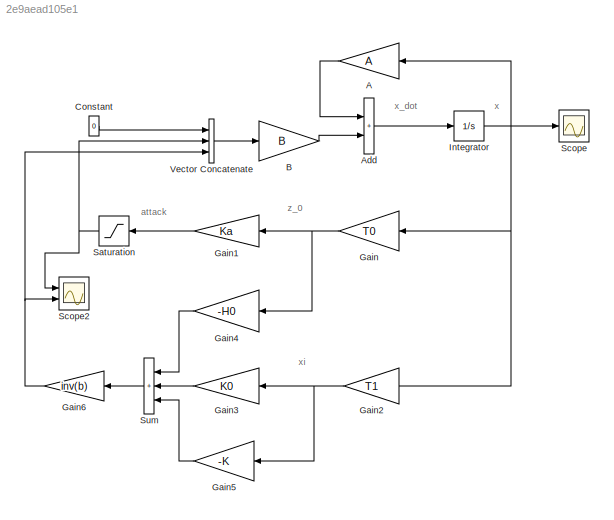
MODEL slx_2e9aead105e1
KIND model
CONFIG AbsTol = auto
CONFIG EnableMultiTasking = off
CONFIG FixedStep = auto
CONFIG MaxStep = auto
CONFIG MinStep = auto
CONFIG RelTol = 1e-3
CONFIG SampleTimeConstraint = Unconstrained
CONFIG SolverName = VariableStepAuto
CONFIG StartTime = 0.0
CONFIG StopTime = 6
BLOCK [Gain] A
  Gain = A
  Multiplication = Matrix(K*u) (u vector)
  NameLocation = top
BLOCK [Sum] Add
  IconShape = rectangular
  Ports = [2, 1]
BLOCK [Gain] B
  Gain = B
  Multiplication = Matrix(K*u) (u vector)
BLOCK [Constant] Constant
  Value = 0
BLOCK [Gain] Gain
  Gain = T0
  Multiplication = Matrix(K*u) (u vector)
  NameLocation = top
BLOCK [Gain] Gain1
  Gain = Ka
  Multiplication = Matrix(K*u) (u vector)
  NameLocation = top
BLOCK [Gain] Gain2
  Gain = T1
  Multiplication = Matrix(K*u) (u vector)
  NameLocation = top
BLOCK [Gain] Gain3
  Gain = K0
  Multiplication = Matrix(K*u) (u vector)
  NameLocation = top
BLOCK [Gain] Gain4
  Gain = -H0
  Multiplication = Matrix(K*u) (u vector)
  NameLocation = top
BLOCK [Gain] Gain5
  Gain = -K
  Multiplication = Matrix(K*u) (u vector)
  NameLocation = top
BLOCK [Gain] Gain6
  Gain = inv(b)
  Multiplication = Matrix(K*u) (u vector)
  NameLocation = top
BLOCK [Integrator] Integrator
  ContinuousStateAttributes = ['delta1' 'delta2' 'delta3' 'omega1' 'omega2' 'omega3']
  InitialCondition = [0 omega20 0 0 0 0]
  Ports = [1, 1]
BLOCK [Saturate] Saturation
  LowerLimit = -0.1
  NameLocation = top
  UpperLimit = 0.1
BLOCK [Scope] Scope
  Floating = off
  NumInputPorts = 1
  Ports = [1]
  ScopeSpecificationString = Simulink.scopes.TimeScopeBlockCfg('CurrentConfiguration', extmgr.ConfigurationSet(extmgr.Configuration('Core','General UI',true),extmgr.Configuration('Core','Source UI',true),extmgr.Configuration('Sources','WiredSimulink',true),extmgr.Configuration('Visuals','Time Domain',true,'SerializedDisplays',{struct('MinYLimReal','-0.56989','MaxYLimReal','0.07777','YLabelReal','','MinYLimMag','0.00000','MaxY...<+1664ch>
BLOCK [Scope] Scope2
  Floating = off
  NumInputPorts = 2
  Ports = [2]
  ScopeSpecificationString = Simulink.scopes.TimeScopeBlockCfg('CurrentConfiguration', extmgr.ConfigurationSet(extmgr.Configuration('Core','General UI',true),extmgr.Configuration('Core','Source UI',true),extmgr.Configuration('Sources','WiredSimulink',true,'DataLoggingVariableName','ScopeData2'),extmgr.Configuration('Visuals','Time Domain',true,'SerializedDisplays',{struct('MinYLimReal','-0.03721','MaxYLimReal','0.01276','YLab...<+1521ch>
BLOCK [Sum] Sum
  IconShape = rectangular
  Inputs = +++
  NameLocation = top
  Ports = [3, 1]
BLOCK [Concatenate] Vector Concatenate
  NumInputs = 3
  Ports = [3, 1]
ANNOTATION (root): attack
ANNOTATION (root): x
ANNOTATION (root): x_dot
ANNOTATION (root): xi
ANNOTATION (root): z_0
LINE A:1 -> Add:1
LINE Add:1 -> Integrator:1
LINE B:1 -> Add:2
LINE Constant:1 -> Vector Concatenate:1
LINE Gain1:1 -> Saturation:1
NET Gain2:1 -> Gain3:1, Gain5:1
LINE Gain3:1 -> Sum:2
LINE Gain4:1 -> Sum:1
LINE Gain5:1 -> Sum:3
NET Gain6:1 -> Scope2:2, Vector Concatenate:3
NET Gain:1 -> Gain1:1, Gain4:1
NET Integrator:1 -> A:1, Gain2:1, Gain:1, Scope:1
NET Saturation:1 -> Scope2:1, Vector Concatenate:2
LINE Sum:1 -> Gain6:1
LINE Vector Concatenate:1 -> B:1
note: NET lines group one-source signal fan-out (src -> all destinations, sorted); 1:1 wires keep LINE
